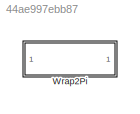
MODEL slx_44ae997ebb87
KIND library
CONFIG AbsTol = auto
CONFIG EnableMultiTasking = off
CONFIG FixedStep = auto
CONFIG MaxStep = auto
CONFIG MinStep = auto
CONFIG RelTol = 1e-3
CONFIG SampleTimeConstraint = Unconstrained
CONFIG Solver = VariableStepAuto
CONFIG SolverName = VariableStepAuto
CONFIG StartTime = 0.0
CONFIG StopTime = 10.0
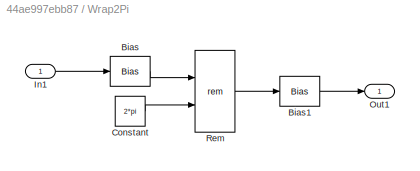
BLOCK [SubSystem] Wrap2Pi
  Ports = [1, 1]
  RequestExecContextInheritance = off
BLOCK [Bias] Wrap2Pi/Bias
  Bias = pi
  SaturateOnIntegerOverflow = off
BLOCK [Bias] Wrap2Pi/Bias1
  Bias = -pi
  SaturateOnIntegerOverflow = off
BLOCK [Constant] Wrap2Pi/Constant
  Value = 2*pi
BLOCK [Inport] Wrap2Pi/In1
BLOCK [Outport] Wrap2Pi/Out1
BLOCK [Math] Wrap2Pi/Rem
  Operator = rem
  Ports = [2, 1]
LINE Wrap2Pi/Bias1:1 -> Wrap2Pi/Out1:1
LINE Wrap2Pi/Bias:1 -> Wrap2Pi/Rem:1
LINE Wrap2Pi/Constant:1 -> Wrap2Pi/Rem:2
LINE Wrap2Pi/In1:1 -> Wrap2Pi/Bias:1
LINE Wrap2Pi/Rem:1 -> Wrap2Pi/Bias1:1
